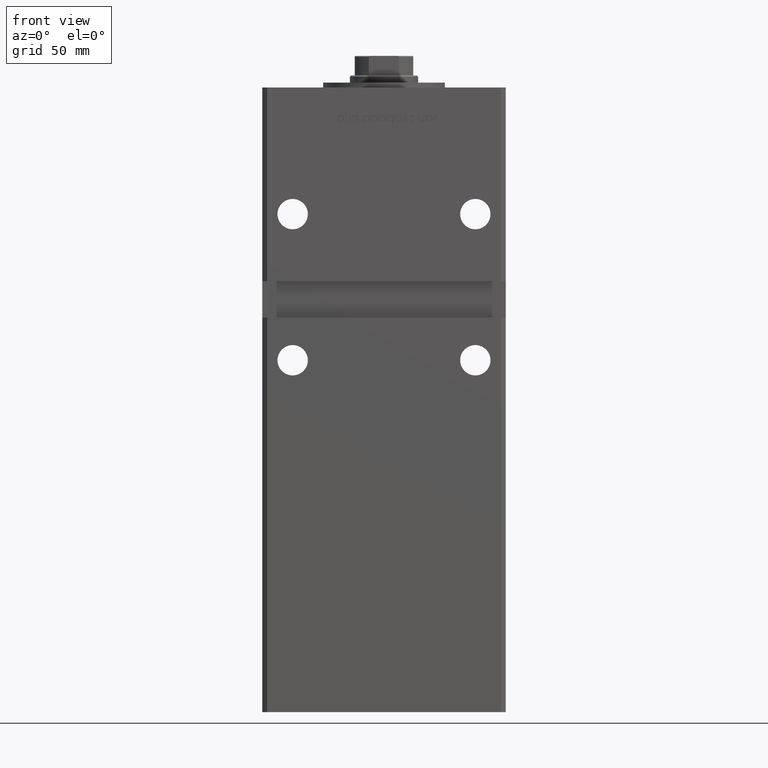
[diagram: clean part render]
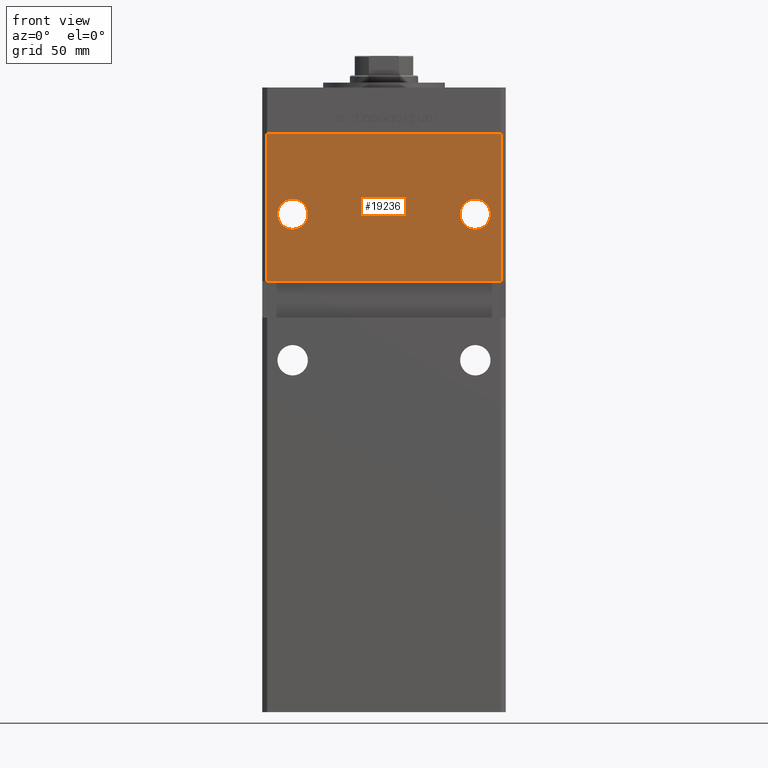
[diagram: same view with one face highlighted and labeled with its STEP entity id]
A machine part, front view. The second image highlights one B-rep face of the part: STEP entity #19236.
In plain terms, the highlighted planar face has unit normal (0, 1, 0).
Its self-contained STEP definition (entity closure, byte-faithful):
#369 = CIRCLE ( 'NONE', #8981, 6.250000000000005329 ) ;
#899 = ORIENTED_EDGE ( 'NONE', *, *, #9589, .T. ) ;
#1372 = CARTESIAN_POINT ( 'NONE',  ( -47.99999999999998579, -43.50000000000000000, 158.0000000000000000 ) ) ;
#2388 = DIRECTION ( 'NONE',  ( 0.000000000000000000, 1.000000000000000000, 0.000000000000000000 ) ) ;
#2457 = CARTESIAN_POINT ( 'NONE',  ( -37.50000000000000000, -43.50000000000000000, 191.7500000000000000 ) ) ;
#2720 = DIRECTION ( 'NONE',  ( 0.000000000000000000, -0.000000000000000000, 1.000000000000000000 ) ) ;
#2981 = CARTESIAN_POINT ( 'NONE',  ( -47.99999999999998579, -43.50000000000000000, 218.5000000000000000 ) ) ;
#3589 = VERTEX_POINT ( 'NONE', #2457 ) ;
#4168 = EDGE_LOOP ( 'NONE', ( #22612, #20297 ) ) ;
#5248 = CIRCLE ( 'NONE', #35366, 6.250000000000005329 ) ;
#5587 = DIRECTION ( 'NONE',  ( -0.000000000000000000, -0.000000000000000000, -1.000000000000000000 ) ) ;
#6121 = LINE ( 'NONE', #11144, #26633 ) ;
#6752 = PLANE ( 'NONE',  #18825 ) ;
#7434 = VERTEX_POINT ( 'NONE', #15187 ) ;
#7473 = CARTESIAN_POINT ( 'NONE',  ( -37.50000000000000000, -43.50000000000000000, 185.5000000000000000 ) ) ;
#8224 = DIRECTION ( 'NONE',  ( 0.000000000000000000, 1.000000000000000000, 0.000000000000000000 ) ) ;
#8705 = ORIENTED_EDGE ( 'NONE', *, *, #52901, .F. ) ;
#8764 = CARTESIAN_POINT ( 'NONE',  ( 37.50000000000000000, -43.50000000000000000, 185.5000000000000000 ) ) ;
#8981 = AXIS2_PLACEMENT_3D ( 'NONE', #32632, #19993, #36672 ) ;
#9589 = EDGE_CURVE ( 'NONE', #28539, #14922, #39821, .T. ) ;
#9695 = DIRECTION ( 'NONE',  ( -1.000000000000000000, -0.000000000000000000, -0.000000000000000000 ) ) ;
#11144 = CARTESIAN_POINT ( 'NONE',  ( 47.99999999999998579, -43.50000000000000000, 218.5000000000000000 ) ) ;
#12122 = VECTOR ( 'NONE', #37430, 1000.000000000000000 ) ;
#12314 = ORIENTED_EDGE ( 'NONE', *, *, #21785, .F. ) ;
#12815 = CARTESIAN_POINT ( 'NONE',  ( 47.99999999999998579, -43.50000000000000000, 158.0000000000000000 ) ) ;
#12959 = EDGE_CURVE ( 'NONE', #3589, #27021, #47011, .T. ) ;
#13464 = LINE ( 'NONE', #47112, #32223 ) ;
#14278 = EDGE_LOOP ( 'NONE', ( #17025, #31345 ) ) ;
#14922 = VERTEX_POINT ( 'NONE', #1372 ) ;
#15187 = CARTESIAN_POINT ( 'NONE',  ( 37.50000000000000000, -43.50000000000000000, 191.7500000000000000 ) ) ;
#15847 = CARTESIAN_POINT ( 'NONE',  ( -47.99999999999998579, -43.50000000000000000, 218.5000000000000000 ) ) ;
#16430 = CARTESIAN_POINT ( 'NONE',  ( -47.99999999999998579, -43.50000000000000000, 218.5000000000000000 ) ) ;
#16681 = EDGE_CURVE ( 'NONE', #26528, #7434, #39393, .T. ) ;
#17025 = ORIENTED_EDGE ( 'NONE', *, *, #30196, .T. ) ;
#17363 = VERTEX_POINT ( 'NONE', #12815 ) ;
#18720 = DIRECTION ( 'NONE',  ( 0.000000000000000000, 1.000000000000000000, 0.000000000000000000 ) ) ;
#18825 = AXIS2_PLACEMENT_3D ( 'NONE', #2981, #39590, #2720 ) ;
#19236 = ADVANCED_FACE ( 'NONE', ( #23699, #27992, #23435 ), #6752, .F. ) ;
#19485 = AXIS2_PLACEMENT_3D ( 'NONE', #7473, #2388, #36005 ) ;
#19993 = DIRECTION ( 'NONE',  ( 0.000000000000000000, 1.000000000000000000, 0.000000000000000000 ) ) ;
#20297 = ORIENTED_EDGE ( 'NONE', *, *, #51582, .T. ) ;
#21785 = EDGE_CURVE ( 'NONE', #38031, #17363, #6121, .T. ) ;
#22612 = ORIENTED_EDGE ( 'NONE', *, *, #12959, .T. ) ;
#23435 = FACE_OUTER_BOUND ( 'NONE', #39787, .T. ) ;
#23699 = FACE_BOUND ( 'NONE', #14278, .T. ) ;
#25183 = DIRECTION ( 'NONE',  ( 0.000000000000000000, 0.000000000000000000, 1.000000000000000000 ) ) ;
#25581 = LINE ( 'NONE', #16430, #12122 ) ;
#25663 = CARTESIAN_POINT ( 'NONE',  ( 37.50000000000000000, -43.50000000000000000, 179.2500000000000000 ) ) ;
#26528 = VERTEX_POINT ( 'NONE', #25663 ) ;
#26633 = VECTOR ( 'NONE', #5587, 1000.000000000000000 ) ;
#27021 = VERTEX_POINT ( 'NONE', #44650 ) ;
#27992 = FACE_BOUND ( 'NONE', #4168, .T. ) ;
#28539 = VERTEX_POINT ( 'NONE', #38863 ) ;
#30196 = EDGE_CURVE ( 'NONE', #7434, #26528, #5248, .T. ) ;
#31345 = ORIENTED_EDGE ( 'NONE', *, *, #16681, .T. ) ;
#32223 = VECTOR ( 'NONE', #9695, 1000.000000000000000 ) ;
#32632 = CARTESIAN_POINT ( 'NONE',  ( -37.50000000000000000, -43.50000000000000000, 185.5000000000000000 ) ) ;
#35366 = AXIS2_PLACEMENT_3D ( 'NONE', #8764, #8224, #25183 ) ;
#35938 = DIRECTION ( 'NONE',  ( 0.000000000000000000, 0.000000000000000000, 1.000000000000000000 ) ) ;
#36005 = DIRECTION ( 'NONE',  ( 0.000000000000000000, 0.000000000000000000, 1.000000000000000000 ) ) ;
#36672 = DIRECTION ( 'NONE',  ( 0.000000000000000000, 0.000000000000000000, 1.000000000000000000 ) ) ;
#37430 = DIRECTION ( 'NONE',  ( 1.000000000000000000, 0.000000000000000000, 0.000000000000000000 ) ) ;
#38031 = VERTEX_POINT ( 'NONE', #47728 ) ;
#38863 = CARTESIAN_POINT ( 'NONE',  ( -47.99999999999998579, -43.50000000000000000, 218.5000000000000000 ) ) ;
#39393 = CIRCLE ( 'NONE', #50577, 6.250000000000005329 ) ;
#39590 = DIRECTION ( 'NONE',  ( 0.000000000000000000, 1.000000000000000000, 0.000000000000000000 ) ) ;
#39787 = EDGE_LOOP ( 'NONE', ( #899, #8705, #12314, #44243 ) ) ;
#39821 = LINE ( 'NONE', #15847, #45130 ) ;
#42266 = EDGE_CURVE ( 'NONE', #28539, #38031, #25581, .T. ) ;
#44243 = ORIENTED_EDGE ( 'NONE', *, *, #42266, .F. ) ;
#44650 = CARTESIAN_POINT ( 'NONE',  ( -37.50000000000000000, -43.50000000000000000, 179.2500000000000000 ) ) ;
#45130 = VECTOR ( 'NONE', #52201, 1000.000000000000000 ) ;
#47011 = CIRCLE ( 'NONE', #19485, 6.250000000000005329 ) ;
#47112 = CARTESIAN_POINT ( 'NONE',  ( -49.99999999999998579, -43.50000000000000000, 158.0000000000000000 ) ) ;
#47728 = CARTESIAN_POINT ( 'NONE',  ( 47.99999999999998579, -43.50000000000000000, 218.5000000000000000 ) ) ;
#50577 = AXIS2_PLACEMENT_3D ( 'NONE', #52087, #18720, #35938 ) ;
#51582 = EDGE_CURVE ( 'NONE', #27021, #3589, #369, .T. ) ;
#52087 = CARTESIAN_POINT ( 'NONE',  ( 37.50000000000000000, -43.50000000000000000, 185.5000000000000000 ) ) ;
#52201 = DIRECTION ( 'NONE',  ( -0.000000000000000000, -0.000000000000000000, -1.000000000000000000 ) ) ;
#52901 = EDGE_CURVE ( 'NONE', #17363, #14922, #13464, .T. ) ;